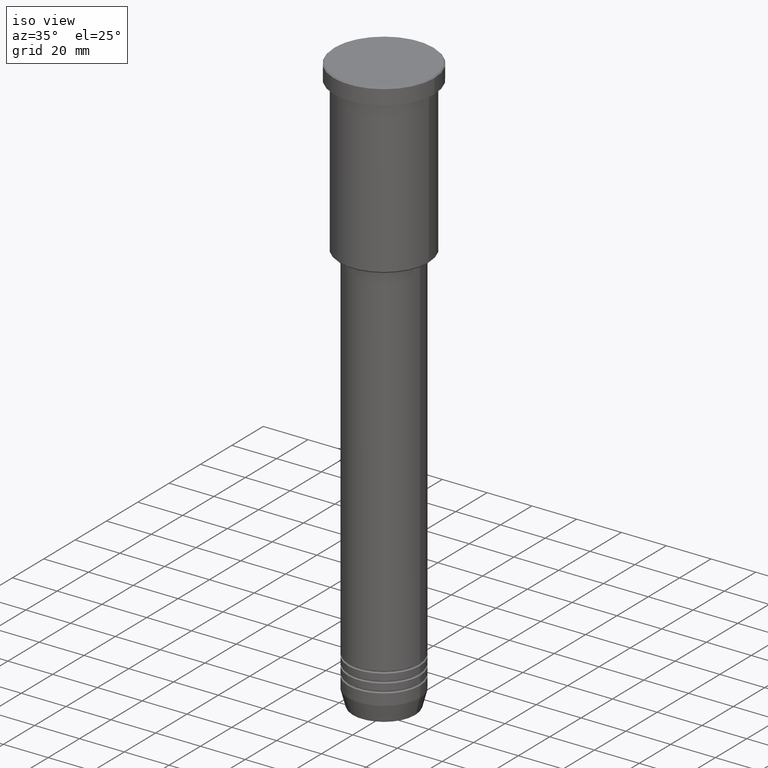
[diagram: clean part render]
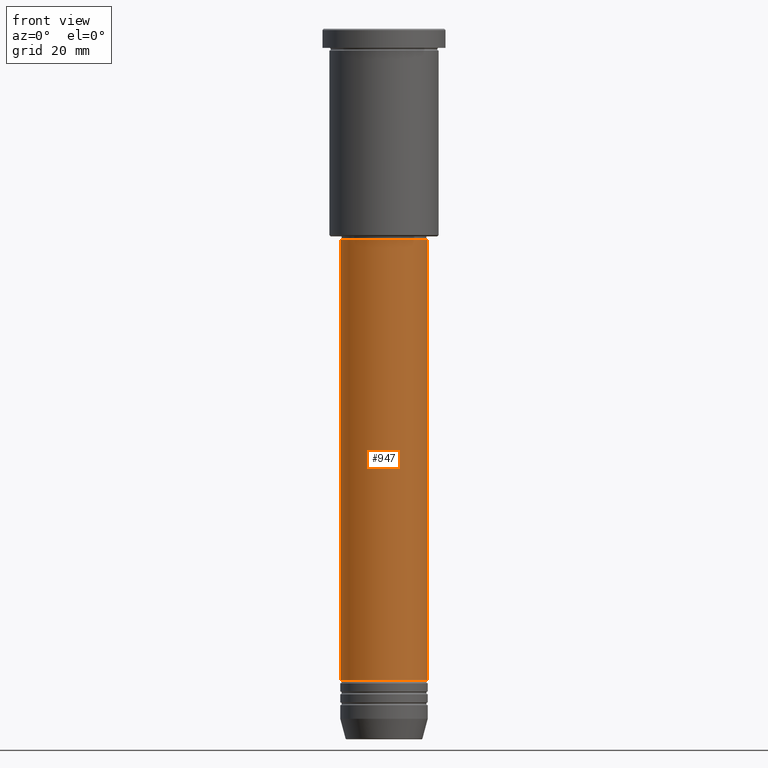
[diagram: tour spotlight — one face highlighted and labeled with its STEP entity id]
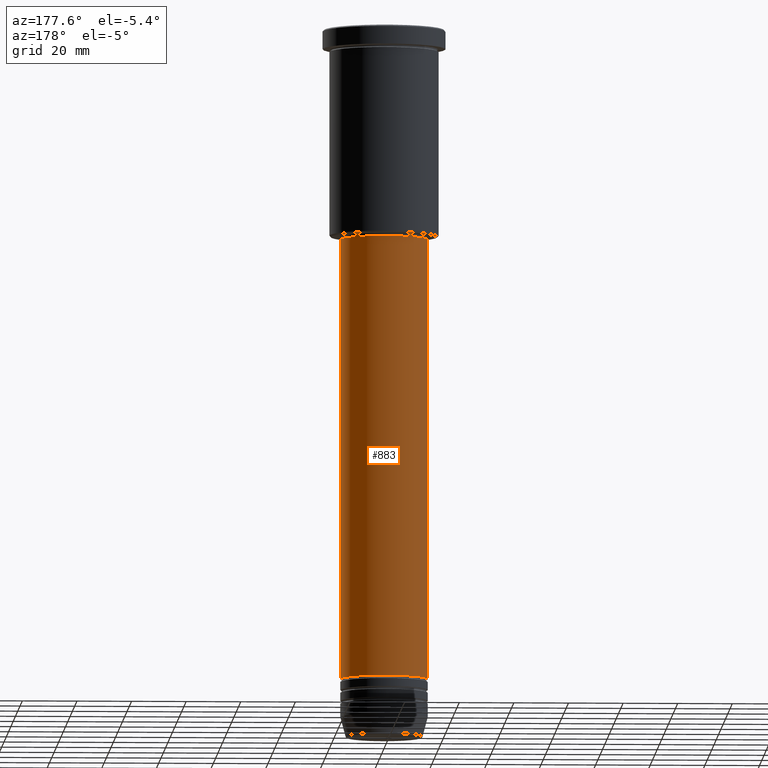
[diagram: tour spotlight — one face highlighted and labeled with its STEP entity id]
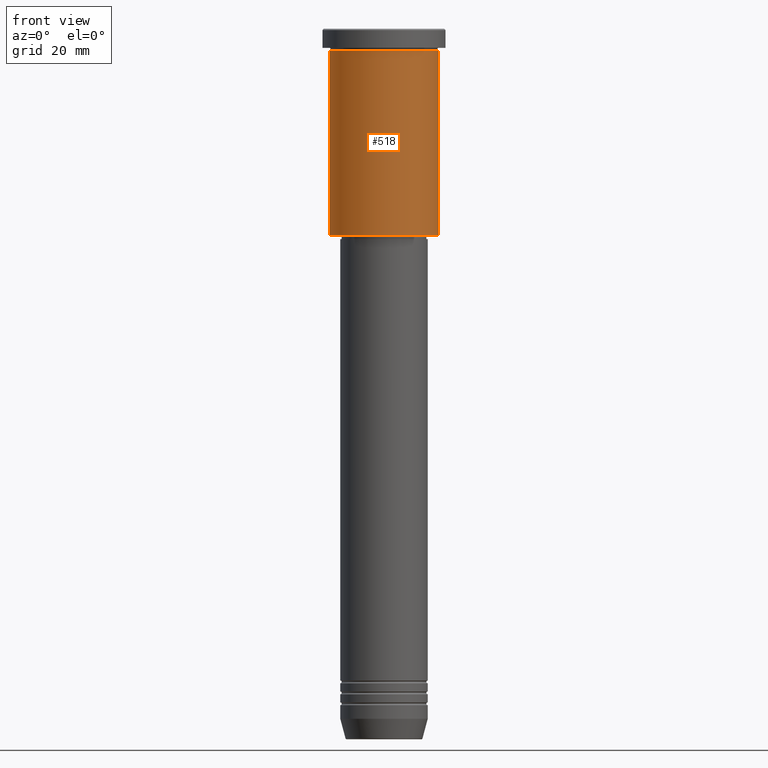
[diagram: tour spotlight — one face highlighted and labeled with its STEP entity id]
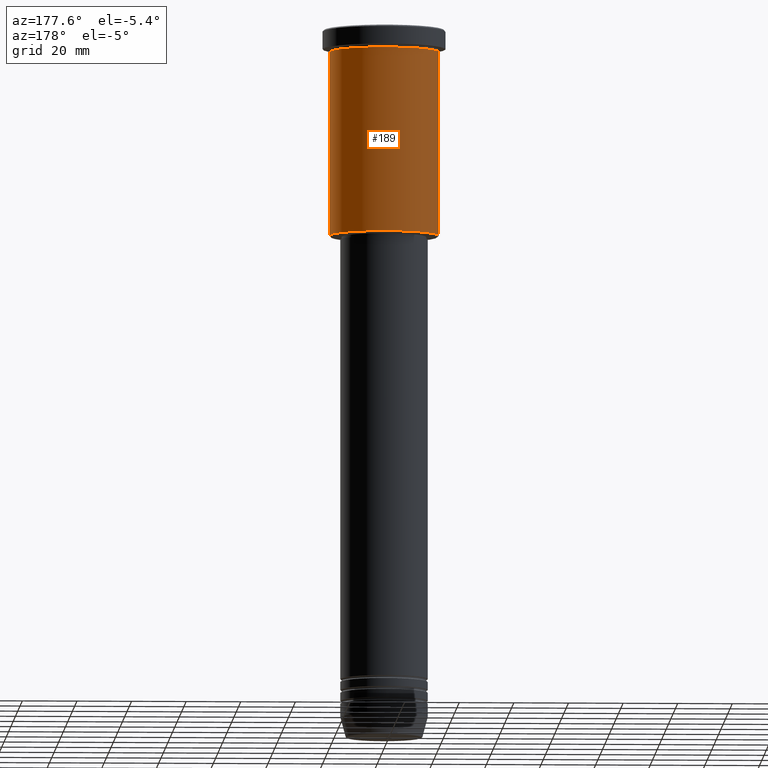
[diagram: tour spotlight — one face highlighted and labeled with its STEP entity id]
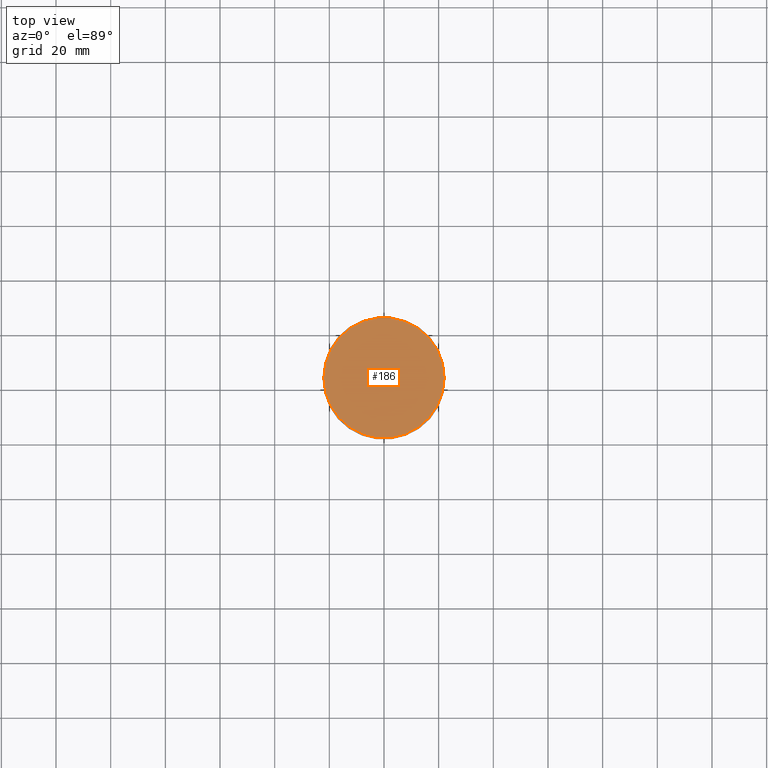
[diagram: tour spotlight — one face highlighted and labeled with its STEP entity id]
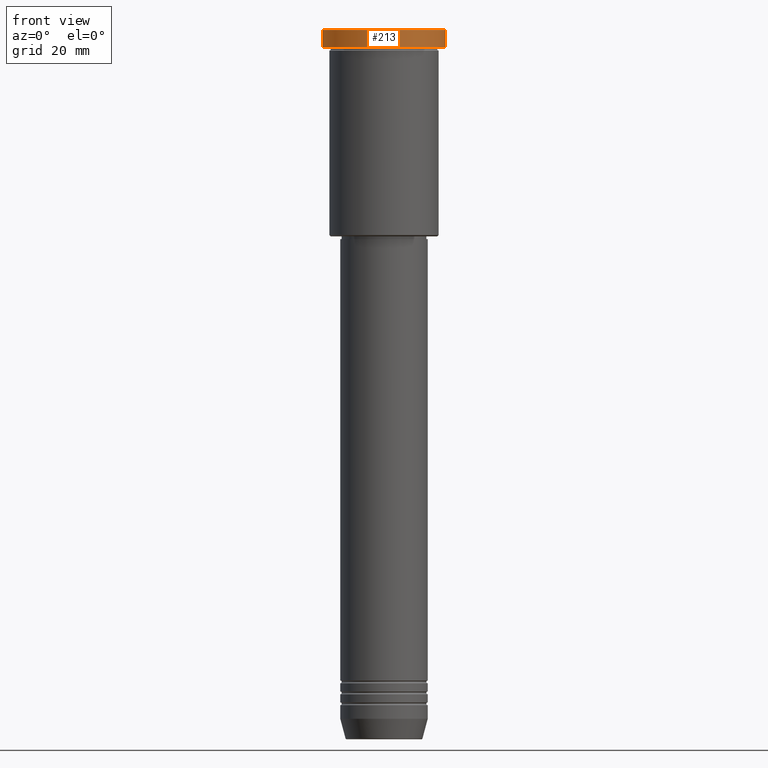
[diagram: tour spotlight — one face highlighted and labeled with its STEP entity id]
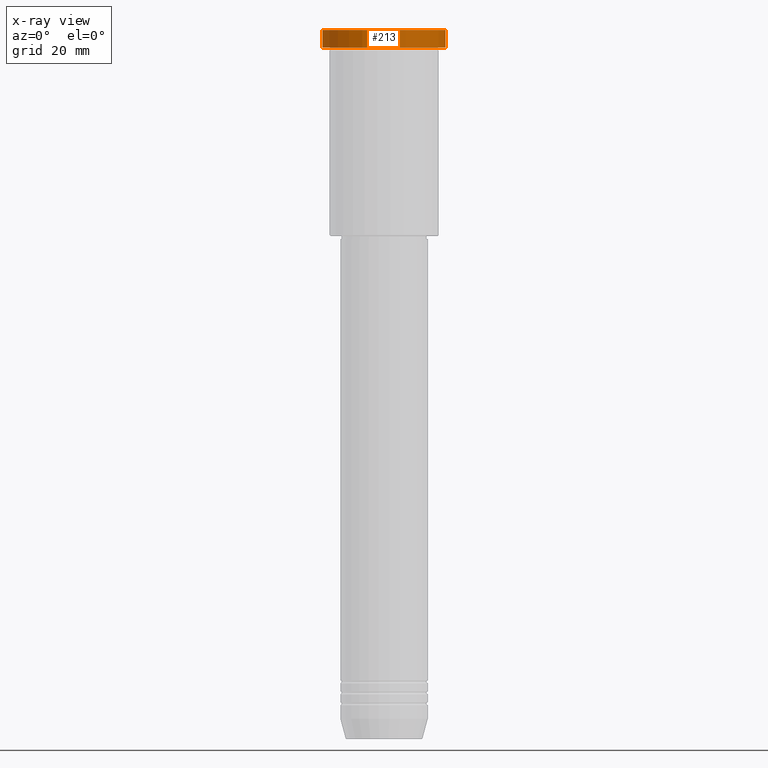
[diagram: x-ray of the same camera — body ghosted, this tour face saturated]
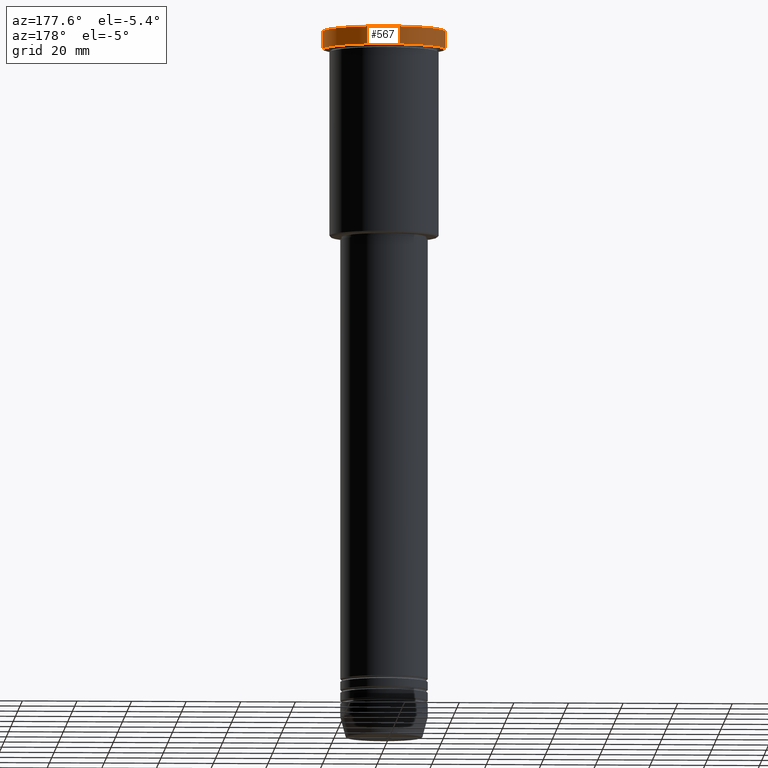
[diagram: tour spotlight — one face highlighted and labeled with its STEP entity id]
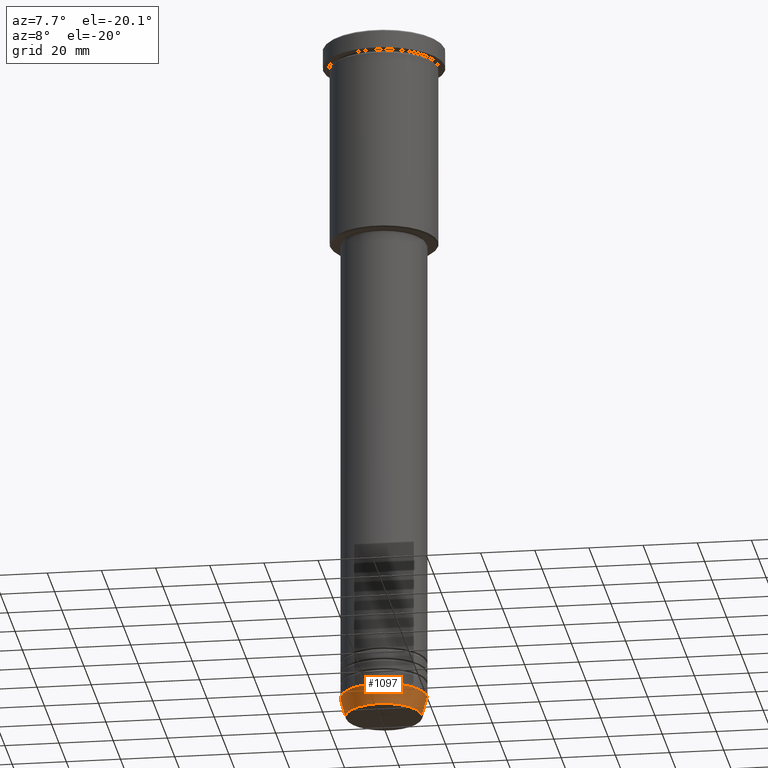
[diagram: tour spotlight — one face highlighted and labeled with its STEP entity id]
A machine part: a face-by-face anatomy tour. The part has 43 B-rep faces; the first image is the clean iso view, then the 8 largest visible faces are spotlighted one at a time (largest first), each with its STEP entity span.

Face 1 — front view, entity #947. In plain terms, the highlighted cylindrical surface (partial cylindrical patch) has radius 16 mm, axis along (-0, -0, 1).
Definition (entity closure, byte-faithful):
#93 = VERTEX_POINT ( 'NONE', #641 ) ;
#103 = EDGE_CURVE ( 'NONE', #240, #918, #1083, .T. ) ;
#108 = CYLINDRICAL_SURFACE ( 'NONE', #219, 16.00000000000000000 ) ;
#114 = DIRECTION ( 'NONE',  ( -0.000000000000000000, -0.000000000000000000, 1.000000000000000000 ) ) ;
#123 = CIRCLE ( 'NONE', #1147, 16.00000000000000000 ) ;
#219 = AXIS2_PLACEMENT_3D ( 'NONE', #563, #114, #574 ) ;
#240 = VERTEX_POINT ( 'NONE', #921 ) ;
#241 = CARTESIAN_POINT ( 'NONE',  ( 16.00000000000000000, 0.000000000000000000, 0.000000000000000000 ) ) ;
#248 = AXIS2_PLACEMENT_3D ( 'NONE', #432, #988, #333 ) ;
#275 = CARTESIAN_POINT ( 'NONE',  ( -16.00000000000000000, 1.959434878635765131E-15, 0.000000000000000000 ) ) ;
#285 = CARTESIAN_POINT ( 'NONE',  ( 16.00000000000000000, 0.000000000000000000, -238.5000000000000000 ) ) ;
#333 = DIRECTION ( 'NONE',  ( 1.000000000000000000, 0.000000000000000000, 0.000000000000000000 ) ) ;
#386 = ORIENTED_EDGE ( 'NONE', *, *, #418, .T. ) ;
#392 = EDGE_LOOP ( 'NONE', ( #1065, #386, #663, #837 ) ) ;
#418 = EDGE_CURVE ( 'NONE', #240, #955, #772, .T. ) ;
#432 = CARTESIAN_POINT ( 'NONE',  ( 0.000000000000000000, 0.000000000000000000, -238.5000000000000000 ) ) ;
#510 = DIRECTION ( 'NONE',  ( -0.000000000000000000, -0.000000000000000000, 1.000000000000000000 ) ) ;
#533 = LINE ( 'NONE', #241, #834 ) ;
#546 = DIRECTION ( 'NONE',  ( -0.000000000000000000, -0.000000000000000000, 1.000000000000000000 ) ) ;
#555 = FACE_OUTER_BOUND ( 'NONE', #392, .T. ) ;
#563 = CARTESIAN_POINT ( 'NONE',  ( 0.000000000000000000, 0.000000000000000000, 0.000000000000000000 ) ) ;
#565 = DIRECTION ( 'NONE',  ( -0.000000000000000000, -0.000000000000000000, 1.000000000000000000 ) ) ;
#574 = DIRECTION ( 'NONE',  ( 1.000000000000000000, 0.000000000000000000, 0.000000000000000000 ) ) ;
#583 = CARTESIAN_POINT ( 'NONE',  ( -16.00000000000000000, 1.959434878635765131E-15, -77.00000000000001421 ) ) ;
#641 = CARTESIAN_POINT ( 'NONE',  ( 16.00000000000000000, 0.000000000000000000, -77.00000000000001421 ) ) ;
#642 = EDGE_CURVE ( 'NONE', #918, #93, #123, .T. ) ;
#663 = ORIENTED_EDGE ( 'NONE', *, *, #1164, .T. ) ;
#772 = CIRCLE ( 'NONE', #248, 16.00000000000000000 ) ;
#834 = VECTOR ( 'NONE', #565, 1000.000000000000000 ) ;
#837 = ORIENTED_EDGE ( 'NONE', *, *, #642, .F. ) ;
#879 = CARTESIAN_POINT ( 'NONE',  ( 0.000000000000000000, 0.000000000000000000, -77.00000000000001421 ) ) ;
#918 = VERTEX_POINT ( 'NONE', #583 ) ;
#921 = CARTESIAN_POINT ( 'NONE',  ( -16.00000000000000000, 1.959434878635765131E-15, -238.5000000000000000 ) ) ;
#947 = ADVANCED_FACE ( 'NONE', ( #555 ), #108, .T. ) ;
#955 = VERTEX_POINT ( 'NONE', #285 ) ;
#988 = DIRECTION ( 'NONE',  ( -0.000000000000000000, -0.000000000000000000, 1.000000000000000000 ) ) ;
#1042 = DIRECTION ( 'NONE',  ( 1.000000000000000000, 0.000000000000000000, 0.000000000000000000 ) ) ;
#1065 = ORIENTED_EDGE ( 'NONE', *, *, #103, .F. ) ;
#1083 = LINE ( 'NONE', #275, #1145 ) ;
#1145 = VECTOR ( 'NONE', #546, 1000.000000000000000 ) ;
#1147 = AXIS2_PLACEMENT_3D ( 'NONE', #879, #510, #1042 ) ;
#1164 = EDGE_CURVE ( 'NONE', #955, #93, #533, .T. ) ;

Face 2 — auxiliary view, entity #883. In plain terms, the highlighted cylindrical surface (partial cylindrical patch) has radius 16 mm, axis along (-0, -0, 1).
Definition (entity closure, byte-faithful):
#28 = AXIS2_PLACEMENT_3D ( 'NONE', #205, #362, #650 ) ;
#93 = VERTEX_POINT ( 'NONE', #641 ) ;
#103 = EDGE_CURVE ( 'NONE', #240, #918, #1083, .T. ) ;
#124 = AXIS2_PLACEMENT_3D ( 'NONE', #391, #1119, #848 ) ;
#201 = ORIENTED_EDGE ( 'NONE', *, *, #103, .T. ) ;
#205 = CARTESIAN_POINT ( 'NONE',  ( 0.000000000000000000, 0.000000000000000000, -238.5000000000000000 ) ) ;
#209 = ORIENTED_EDGE ( 'NONE', *, *, #956, .F. ) ;
#240 = VERTEX_POINT ( 'NONE', #921 ) ;
#241 = CARTESIAN_POINT ( 'NONE',  ( 16.00000000000000000, 0.000000000000000000, 0.000000000000000000 ) ) ;
#275 = CARTESIAN_POINT ( 'NONE',  ( -16.00000000000000000, 1.959434878635765131E-15, 0.000000000000000000 ) ) ;
#285 = CARTESIAN_POINT ( 'NONE',  ( 16.00000000000000000, 0.000000000000000000, -238.5000000000000000 ) ) ;
#352 = CARTESIAN_POINT ( 'NONE',  ( 0.000000000000000000, 0.000000000000000000, 0.000000000000000000 ) ) ;
#362 = DIRECTION ( 'NONE',  ( -0.000000000000000000, -0.000000000000000000, 1.000000000000000000 ) ) ;
#391 = CARTESIAN_POINT ( 'NONE',  ( 0.000000000000000000, 0.000000000000000000, -77.00000000000001421 ) ) ;
#517 = ORIENTED_EDGE ( 'NONE', *, *, #1164, .F. ) ;
#533 = LINE ( 'NONE', #241, #834 ) ;
#546 = DIRECTION ( 'NONE',  ( -0.000000000000000000, -0.000000000000000000, 1.000000000000000000 ) ) ;
#565 = DIRECTION ( 'NONE',  ( -0.000000000000000000, -0.000000000000000000, 1.000000000000000000 ) ) ;
#583 = CARTESIAN_POINT ( 'NONE',  ( -16.00000000000000000, 1.959434878635765131E-15, -77.00000000000001421 ) ) ;
#641 = CARTESIAN_POINT ( 'NONE',  ( 16.00000000000000000, 0.000000000000000000, -77.00000000000001421 ) ) ;
#650 = DIRECTION ( 'NONE',  ( 1.000000000000000000, 0.000000000000000000, 0.000000000000000000 ) ) ;
#662 = CIRCLE ( 'NONE', #28, 16.00000000000000000 ) ;
#708 = FACE_OUTER_BOUND ( 'NONE', #803, .T. ) ;
#728 = DIRECTION ( 'NONE',  ( -0.000000000000000000, -0.000000000000000000, 1.000000000000000000 ) ) ;
#803 = EDGE_LOOP ( 'NONE', ( #846, #201, #209, #517 ) ) ;
#812 = CYLINDRICAL_SURFACE ( 'NONE', #869, 16.00000000000000000 ) ;
#834 = VECTOR ( 'NONE', #565, 1000.000000000000000 ) ;
#846 = ORIENTED_EDGE ( 'NONE', *, *, #940, .T. ) ;
#848 = DIRECTION ( 'NONE',  ( 1.000000000000000000, 0.000000000000000000, 0.000000000000000000 ) ) ;
#854 = CIRCLE ( 'NONE', #124, 16.00000000000000000 ) ;
#869 = AXIS2_PLACEMENT_3D ( 'NONE', #352, #728, #1081 ) ;
#883 = ADVANCED_FACE ( 'NONE', ( #708 ), #812, .T. ) ;
#918 = VERTEX_POINT ( 'NONE', #583 ) ;
#921 = CARTESIAN_POINT ( 'NONE',  ( -16.00000000000000000, 1.959434878635765131E-15, -238.5000000000000000 ) ) ;
#940 = EDGE_CURVE ( 'NONE', #955, #240, #662, .T. ) ;
#955 = VERTEX_POINT ( 'NONE', #285 ) ;
#956 = EDGE_CURVE ( 'NONE', #93, #918, #854, .T. ) ;
#1081 = DIRECTION ( 'NONE',  ( 1.000000000000000000, 0.000000000000000000, 0.000000000000000000 ) ) ;
#1083 = LINE ( 'NONE', #275, #1145 ) ;
#1119 = DIRECTION ( 'NONE',  ( -0.000000000000000000, -0.000000000000000000, 1.000000000000000000 ) ) ;
#1145 = VECTOR ( 'NONE', #546, 1000.000000000000000 ) ;
#1164 = EDGE_CURVE ( 'NONE', #955, #93, #533, .T. ) ;

Face 3 — front view, entity #518. In plain terms, the highlighted cylindrical surface (partial cylindrical patch) has radius 20 mm, axis along (-0, -0, 1).
Definition (entity closure, byte-faithful):
#54 = CARTESIAN_POINT ( 'NONE',  ( 0.000000000000000000, 0.000000000000000000, 0.000000000000000000 ) ) ;
#58 = VERTEX_POINT ( 'NONE', #535 ) ;
#97 = CARTESIAN_POINT ( 'NONE',  ( 20.00000000000000355, 0.000000000000000000, 0.000000000000000000 ) ) ;
#125 = DIRECTION ( 'NONE',  ( -0.000000000000000000, -0.000000000000000000, 1.000000000000000000 ) ) ;
#151 = DIRECTION ( 'NONE',  ( 1.000000000000000000, 0.000000000000000000, 0.000000000000000000 ) ) ;
#157 = CARTESIAN_POINT ( 'NONE',  ( -20.00000000000000355, 2.449293598294706907E-15, 0.000000000000000000 ) ) ;
#236 = ORIENTED_EDGE ( 'NONE', *, *, #712, .F. ) ;
#237 = DIRECTION ( 'NONE',  ( -0.000000000000000000, -0.000000000000000000, 1.000000000000000000 ) ) ;
#273 = EDGE_LOOP ( 'NONE', ( #236, #766, #350, #726 ) ) ;
#308 = CIRCLE ( 'NONE', #1146, 20.00000000000000000 ) ;
#342 = DIRECTION ( 'NONE',  ( -0.000000000000000000, -0.000000000000000000, 1.000000000000000000 ) ) ;
#350 = ORIENTED_EDGE ( 'NONE', *, *, #910, .T. ) ;
#401 = VECTOR ( 'NONE', #629, 1000.000000000000000 ) ;
#433 = LINE ( 'NONE', #157, #401 ) ;
#466 = DIRECTION ( 'NONE',  ( -0.000000000000000000, -0.000000000000000000, 1.000000000000000000 ) ) ;
#514 = FACE_OUTER_BOUND ( 'NONE', #273, .T. ) ;
#515 = EDGE_CURVE ( 'NONE', #58, #1107, #308, .T. ) ;
#518 = ADVANCED_FACE ( 'NONE', ( #514 ), #878, .T. ) ;
#522 = VERTEX_POINT ( 'NONE', #604 ) ;
#535 = CARTESIAN_POINT ( 'NONE',  ( -20.00000000000000000, 2.449293598294706513E-15, -7.999999999999994671 ) ) ;
#604 = CARTESIAN_POINT ( 'NONE',  ( -20.00000000000000355, 2.449293598294706907E-15, -75.50000000000001421 ) ) ;
#618 = CIRCLE ( 'NONE', #983, 20.00000000000000355 ) ;
#629 = DIRECTION ( 'NONE',  ( -0.000000000000000000, -0.000000000000000000, 1.000000000000000000 ) ) ;
#707 = CARTESIAN_POINT ( 'NONE',  ( 20.00000000000000355, 0.000000000000000000, -75.50000000000001421 ) ) ;
#712 = EDGE_CURVE ( 'NONE', #522, #58, #433, .T. ) ;
#717 = AXIS2_PLACEMENT_3D ( 'NONE', #54, #237, #1144 ) ;
#726 = ORIENTED_EDGE ( 'NONE', *, *, #515, .F. ) ;
#762 = CARTESIAN_POINT ( 'NONE',  ( 0.000000000000000000, 0.000000000000000000, -75.50000000000001421 ) ) ;
#766 = ORIENTED_EDGE ( 'NONE', *, *, #969, .T. ) ;
#878 = CYLINDRICAL_SURFACE ( 'NONE', #717, 20.00000000000000355 ) ;
#889 = VECTOR ( 'NONE', #466, 1000.000000000000000 ) ;
#910 = EDGE_CURVE ( 'NONE', #1015, #1107, #922, .T. ) ;
#922 = LINE ( 'NONE', #97, #889 ) ;
#923 = DIRECTION ( 'NONE',  ( -1.000000000000000000, 0.000000000000000000, 0.000000000000000000 ) ) ;
#969 = EDGE_CURVE ( 'NONE', #522, #1015, #618, .T. ) ;
#982 = CARTESIAN_POINT ( 'NONE',  ( 0.000000000000000000, 0.000000000000000000, -7.999999999999994671 ) ) ;
#983 = AXIS2_PLACEMENT_3D ( 'NONE', #762, #125, #923 ) ;
#993 = CARTESIAN_POINT ( 'NONE',  ( 20.00000000000000000, 0.000000000000000000, -7.999999999999994671 ) ) ;
#1015 = VERTEX_POINT ( 'NONE', #707 ) ;
#1107 = VERTEX_POINT ( 'NONE', #993 ) ;
#1144 = DIRECTION ( 'NONE',  ( 1.000000000000000000, 0.000000000000000000, 0.000000000000000000 ) ) ;
#1146 = AXIS2_PLACEMENT_3D ( 'NONE', #982, #342, #151 ) ;

Face 4 — auxiliary view, entity #189. In plain terms, the highlighted cylindrical surface (partial cylindrical patch) has radius 20 mm, axis along (-0, -0, 1).
Definition (entity closure, byte-faithful):
#58 = VERTEX_POINT ( 'NONE', #535 ) ;
#97 = CARTESIAN_POINT ( 'NONE',  ( 20.00000000000000355, 0.000000000000000000, 0.000000000000000000 ) ) ;
#120 = AXIS2_PLACEMENT_3D ( 'NONE', #1176, #1011, #358 ) ;
#157 = CARTESIAN_POINT ( 'NONE',  ( -20.00000000000000355, 2.449293598294706907E-15, 0.000000000000000000 ) ) ;
#183 = AXIS2_PLACEMENT_3D ( 'NONE', #850, #733, #1086 ) ;
#189 = ADVANCED_FACE ( 'NONE', ( #377 ), #498, .T. ) ;
#249 = EDGE_CURVE ( 'NONE', #1107, #58, #998, .T. ) ;
#269 = ORIENTED_EDGE ( 'NONE', *, *, #712, .T. ) ;
#287 = DIRECTION ( 'NONE',  ( -0.000000000000000000, -0.000000000000000000, 1.000000000000000000 ) ) ;
#358 = DIRECTION ( 'NONE',  ( 1.000000000000000000, 0.000000000000000000, 0.000000000000000000 ) ) ;
#377 = FACE_OUTER_BOUND ( 'NONE', #610, .T. ) ;
#401 = VECTOR ( 'NONE', #629, 1000.000000000000000 ) ;
#433 = LINE ( 'NONE', #157, #401 ) ;
#466 = DIRECTION ( 'NONE',  ( -0.000000000000000000, -0.000000000000000000, 1.000000000000000000 ) ) ;
#498 = CYLINDRICAL_SURFACE ( 'NONE', #1108, 20.00000000000000355 ) ;
#522 = VERTEX_POINT ( 'NONE', #604 ) ;
#535 = CARTESIAN_POINT ( 'NONE',  ( -20.00000000000000000, 2.449293598294706513E-15, -7.999999999999994671 ) ) ;
#547 = ORIENTED_EDGE ( 'NONE', *, *, #910, .F. ) ;
#575 = DIRECTION ( 'NONE',  ( 1.000000000000000000, 0.000000000000000000, 0.000000000000000000 ) ) ;
#585 = CARTESIAN_POINT ( 'NONE',  ( 0.000000000000000000, 0.000000000000000000, 0.000000000000000000 ) ) ;
#604 = CARTESIAN_POINT ( 'NONE',  ( -20.00000000000000355, 2.449293598294706907E-15, -75.50000000000001421 ) ) ;
#610 = EDGE_LOOP ( 'NONE', ( #1022, #269, #635, #547 ) ) ;
#629 = DIRECTION ( 'NONE',  ( -0.000000000000000000, -0.000000000000000000, 1.000000000000000000 ) ) ;
#635 = ORIENTED_EDGE ( 'NONE', *, *, #249, .F. ) ;
#707 = CARTESIAN_POINT ( 'NONE',  ( 20.00000000000000355, 0.000000000000000000, -75.50000000000001421 ) ) ;
#712 = EDGE_CURVE ( 'NONE', #522, #58, #433, .T. ) ;
#733 = DIRECTION ( 'NONE',  ( -0.000000000000000000, -0.000000000000000000, 1.000000000000000000 ) ) ;
#850 = CARTESIAN_POINT ( 'NONE',  ( 0.000000000000000000, 0.000000000000000000, -75.50000000000001421 ) ) ;
#851 = EDGE_CURVE ( 'NONE', #1015, #522, #979, .T. ) ;
#889 = VECTOR ( 'NONE', #466, 1000.000000000000000 ) ;
#910 = EDGE_CURVE ( 'NONE', #1015, #1107, #922, .T. ) ;
#922 = LINE ( 'NONE', #97, #889 ) ;
#979 = CIRCLE ( 'NONE', #183, 20.00000000000000355 ) ;
#993 = CARTESIAN_POINT ( 'NONE',  ( 20.00000000000000000, 0.000000000000000000, -7.999999999999994671 ) ) ;
#998 = CIRCLE ( 'NONE', #120, 20.00000000000000000 ) ;
#1011 = DIRECTION ( 'NONE',  ( -0.000000000000000000, -0.000000000000000000, 1.000000000000000000 ) ) ;
#1015 = VERTEX_POINT ( 'NONE', #707 ) ;
#1022 = ORIENTED_EDGE ( 'NONE', *, *, #851, .T. ) ;
#1086 = DIRECTION ( 'NONE',  ( -1.000000000000000000, 0.000000000000000000, 0.000000000000000000 ) ) ;
#1107 = VERTEX_POINT ( 'NONE', #993 ) ;
#1108 = AXIS2_PLACEMENT_3D ( 'NONE', #585, #287, #575 ) ;
#1176 = CARTESIAN_POINT ( 'NONE',  ( 0.000000000000000000, 0.000000000000000000, -7.999999999999994671 ) ) ;

Face 5 — top view, entity #186. In plain terms, the highlighted planar face has unit normal (0, -0, 1).
Definition (entity closure, byte-faithful):
#2 = CARTESIAN_POINT ( 'NONE',  ( 0.000000000000000000, 0.000000000000000000, 0.000000000000000000 ) ) ;
#33 = CARTESIAN_POINT ( 'NONE',  ( 0.000000000000000000, 0.000000000000000000, 0.000000000000000000 ) ) ;
#72 = VERTEX_POINT ( 'NONE', #725 ) ;
#106 = CARTESIAN_POINT ( 'NONE',  ( -21.99999999999990763, 0.000000000000000000, 0.000000000000000000 ) ) ;
#140 = AXIS2_PLACEMENT_3D ( 'NONE', #372, #748, #1035 ) ;
#186 = ADVANCED_FACE ( 'NONE', ( #836 ), #557, .T. ) ;
#239 = EDGE_LOOP ( 'NONE', ( #896, #399 ) ) ;
#372 = CARTESIAN_POINT ( 'NONE',  ( 0.000000000000000000, 0.000000000000000000, 0.000000000000000000 ) ) ;
#394 = DIRECTION ( 'NONE',  ( -0.000000000000000000, -0.000000000000000000, 1.000000000000000000 ) ) ;
#399 = ORIENTED_EDGE ( 'NONE', *, *, #985, .T. ) ;
#550 = DIRECTION ( 'NONE',  ( -0.000000000000000000, -0.000000000000000000, 1.000000000000000000 ) ) ;
#557 = PLANE ( 'NONE',  #140 ) ;
#559 = CIRCLE ( 'NONE', #981, 21.99999999999990763 ) ;
#725 = CARTESIAN_POINT ( 'NONE',  ( 21.99999999999990763, 2.724839128102855074E-15, 0.000000000000000000 ) ) ;
#748 = DIRECTION ( 'NONE',  ( 0.000000000000000000, -0.000000000000000000, 1.000000000000000000 ) ) ;
#775 = CIRCLE ( 'NONE', #1004, 21.99999999999990763 ) ;
#833 = DIRECTION ( 'NONE',  ( 1.000000000000000000, 0.000000000000000000, 0.000000000000000000 ) ) ;
#836 = FACE_OUTER_BOUND ( 'NONE', #239, .T. ) ;
#896 = ORIENTED_EDGE ( 'NONE', *, *, #1012, .T. ) ;
#981 = AXIS2_PLACEMENT_3D ( 'NONE', #33, #394, #1152 ) ;
#985 = EDGE_CURVE ( 'NONE', #72, #1017, #775, .T. ) ;
#1004 = AXIS2_PLACEMENT_3D ( 'NONE', #2, #550, #833 ) ;
#1012 = EDGE_CURVE ( 'NONE', #1017, #72, #559, .T. ) ;
#1017 = VERTEX_POINT ( 'NONE', #106 ) ;
#1035 = DIRECTION ( 'NONE',  ( 1.000000000000000000, 0.000000000000000000, 0.000000000000000000 ) ) ;
#1152 = DIRECTION ( 'NONE',  ( 1.000000000000000000, 0.000000000000000000, 0.000000000000000000 ) ) ;

Face 6 — front view, entity #213. An x-ray twin of the same camera follows (body ghosted, this face saturated) — the face is partly hidden behind the body. In plain terms, the highlighted cylindrical surface (partial cylindrical patch) has radius 22.5 mm, axis along (-0, -0, 1).
Definition (entity closure, byte-faithful):
#8 = DIRECTION ( 'NONE',  ( 1.000000000000000000, 0.000000000000000000, 0.000000000000000000 ) ) ;
#119 = DIRECTION ( 'NONE',  ( 1.000000000000000000, 0.000000000000000000, 0.000000000000000000 ) ) ;
#128 = CARTESIAN_POINT ( 'NONE',  ( 0.000000000000000000, 0.000000000000000000, -0.5000000000001045830 ) ) ;
#148 = ORIENTED_EDGE ( 'NONE', *, *, #925, .T. ) ;
#153 = EDGE_CURVE ( 'NONE', #977, #648, #288, .T. ) ;
#177 = LINE ( 'NONE', #1016, #1148 ) ;
#213 = ADVANCED_FACE ( 'NONE', ( #295 ), #677, .T. ) ;
#221 = CARTESIAN_POINT ( 'NONE',  ( 22.50000000000000000, 0.000000000000000000, -0.5000000000001045830 ) ) ;
#232 = AXIS2_PLACEMENT_3D ( 'NONE', #1179, #359, #917 ) ;
#288 = CIRCLE ( 'NONE', #232, 22.50000000000000000 ) ;
#289 = DIRECTION ( 'NONE',  ( 0.000000000000000000, 0.000000000000000000, -1.000000000000000000 ) ) ;
#295 = FACE_OUTER_BOUND ( 'NONE', #750, .T. ) ;
#299 = CARTESIAN_POINT ( 'NONE',  ( -22.50000000000000000, 2.755455298081544778E-15, -6.999999999999995559 ) ) ;
#346 = CIRCLE ( 'NONE', #506, 22.50000000000000000 ) ;
#359 = DIRECTION ( 'NONE',  ( -0.000000000000000000, -0.000000000000000000, 1.000000000000000000 ) ) ;
#375 = DIRECTION ( 'NONE',  ( -0.000000000000000000, -0.000000000000000000, 1.000000000000000000 ) ) ;
#461 = DIRECTION ( 'NONE',  ( -0.000000000000000000, -0.000000000000000000, 1.000000000000000000 ) ) ;
#478 = CARTESIAN_POINT ( 'NONE',  ( 0.000000000000000000, 0.000000000000000000, 0.000000000000000000 ) ) ;
#482 = ORIENTED_EDGE ( 'NONE', *, *, #153, .T. ) ;
#506 = AXIS2_PLACEMENT_3D ( 'NONE', #128, #289, #8 ) ;
#607 = VERTEX_POINT ( 'NONE', #221 ) ;
#648 = VERTEX_POINT ( 'NONE', #970 ) ;
#667 = DIRECTION ( 'NONE',  ( -0.000000000000000000, -0.000000000000000000, 1.000000000000000000 ) ) ;
#677 = CYLINDRICAL_SURFACE ( 'NONE', #926, 22.50000000000000000 ) ;
#750 = EDGE_LOOP ( 'NONE', ( #888, #482, #823, #148 ) ) ;
#763 = LINE ( 'NONE', #1000, #1073 ) ;
#786 = CARTESIAN_POINT ( 'NONE',  ( -22.50000000000000000, 2.755455298081544778E-15, -0.5000000000001045830 ) ) ;
#823 = ORIENTED_EDGE ( 'NONE', *, *, #933, .T. ) ;
#888 = ORIENTED_EDGE ( 'NONE', *, *, #1180, .F. ) ;
#917 = DIRECTION ( 'NONE',  ( 1.000000000000000000, 0.000000000000000000, 0.000000000000000000 ) ) ;
#925 = EDGE_CURVE ( 'NONE', #607, #1078, #346, .T. ) ;
#926 = AXIS2_PLACEMENT_3D ( 'NONE', #478, #667, #119 ) ;
#933 = EDGE_CURVE ( 'NONE', #648, #607, #177, .T. ) ;
#970 = CARTESIAN_POINT ( 'NONE',  ( 22.50000000000000000, 0.000000000000000000, -6.999999999999995559 ) ) ;
#977 = VERTEX_POINT ( 'NONE', #299 ) ;
#1000 = CARTESIAN_POINT ( 'NONE',  ( -22.50000000000000000, 2.755455298081544778E-15, 0.000000000000000000 ) ) ;
#1016 = CARTESIAN_POINT ( 'NONE',  ( 22.50000000000000000, 0.000000000000000000, 0.000000000000000000 ) ) ;
#1073 = VECTOR ( 'NONE', #461, 1000.000000000000000 ) ;
#1078 = VERTEX_POINT ( 'NONE', #786 ) ;
#1148 = VECTOR ( 'NONE', #375, 1000.000000000000000 ) ;
#1179 = CARTESIAN_POINT ( 'NONE',  ( 0.000000000000000000, 0.000000000000000000, -6.999999999999995559 ) ) ;
#1180 = EDGE_CURVE ( 'NONE', #977, #1078, #763, .T. ) ;

Face 7 — auxiliary view, entity #567. In plain terms, the highlighted cylindrical surface (partial cylindrical patch) has radius 22.5 mm, axis along (-0, -0, 1).
Definition (entity closure, byte-faithful):
#85 = CARTESIAN_POINT ( 'NONE',  ( 0.000000000000000000, 0.000000000000000000, -0.5000000000001045830 ) ) ;
#113 = DIRECTION ( 'NONE',  ( 1.000000000000000000, 0.000000000000000000, 0.000000000000000000 ) ) ;
#116 = EDGE_CURVE ( 'NONE', #648, #977, #886, .T. ) ;
#160 = AXIS2_PLACEMENT_3D ( 'NONE', #990, #743, #462 ) ;
#177 = LINE ( 'NONE', #1016, #1148 ) ;
#221 = CARTESIAN_POINT ( 'NONE',  ( 22.50000000000000000, 0.000000000000000000, -0.5000000000001045830 ) ) ;
#262 = DIRECTION ( 'NONE',  ( -0.000000000000000000, -0.000000000000000000, 1.000000000000000000 ) ) ;
#299 = CARTESIAN_POINT ( 'NONE',  ( -22.50000000000000000, 2.755455298081544778E-15, -6.999999999999995559 ) ) ;
#375 = DIRECTION ( 'NONE',  ( -0.000000000000000000, -0.000000000000000000, 1.000000000000000000 ) ) ;
#425 = CIRCLE ( 'NONE', #1092, 22.50000000000000000 ) ;
#451 = CYLINDRICAL_SURFACE ( 'NONE', #948, 22.50000000000000000 ) ;
#461 = DIRECTION ( 'NONE',  ( -0.000000000000000000, -0.000000000000000000, 1.000000000000000000 ) ) ;
#462 = DIRECTION ( 'NONE',  ( 1.000000000000000000, 0.000000000000000000, 0.000000000000000000 ) ) ;
#502 = ORIENTED_EDGE ( 'NONE', *, *, #902, .T. ) ;
#516 = ORIENTED_EDGE ( 'NONE', *, *, #1180, .T. ) ;
#567 = ADVANCED_FACE ( 'NONE', ( #908 ), #451, .T. ) ;
#607 = VERTEX_POINT ( 'NONE', #221 ) ;
#612 = EDGE_LOOP ( 'NONE', ( #1060, #516, #502, #1085 ) ) ;
#648 = VERTEX_POINT ( 'NONE', #970 ) ;
#743 = DIRECTION ( 'NONE',  ( -0.000000000000000000, -0.000000000000000000, 1.000000000000000000 ) ) ;
#763 = LINE ( 'NONE', #1000, #1073 ) ;
#786 = CARTESIAN_POINT ( 'NONE',  ( -22.50000000000000000, 2.755455298081544778E-15, -0.5000000000001045830 ) ) ;
#886 = CIRCLE ( 'NONE', #160, 22.50000000000000000 ) ;
#902 = EDGE_CURVE ( 'NONE', #1078, #607, #425, .T. ) ;
#908 = FACE_OUTER_BOUND ( 'NONE', #612, .T. ) ;
#916 = DIRECTION ( 'NONE',  ( 0.000000000000000000, 0.000000000000000000, -1.000000000000000000 ) ) ;
#933 = EDGE_CURVE ( 'NONE', #648, #607, #177, .T. ) ;
#948 = AXIS2_PLACEMENT_3D ( 'NONE', #1084, #262, #1181 ) ;
#970 = CARTESIAN_POINT ( 'NONE',  ( 22.50000000000000000, 0.000000000000000000, -6.999999999999995559 ) ) ;
#977 = VERTEX_POINT ( 'NONE', #299 ) ;
#990 = CARTESIAN_POINT ( 'NONE',  ( 0.000000000000000000, 0.000000000000000000, -6.999999999999995559 ) ) ;
#1000 = CARTESIAN_POINT ( 'NONE',  ( -22.50000000000000000, 2.755455298081544778E-15, 0.000000000000000000 ) ) ;
#1016 = CARTESIAN_POINT ( 'NONE',  ( 22.50000000000000000, 0.000000000000000000, 0.000000000000000000 ) ) ;
#1060 = ORIENTED_EDGE ( 'NONE', *, *, #116, .T. ) ;
#1073 = VECTOR ( 'NONE', #461, 1000.000000000000000 ) ;
#1078 = VERTEX_POINT ( 'NONE', #786 ) ;
#1084 = CARTESIAN_POINT ( 'NONE',  ( 0.000000000000000000, 0.000000000000000000, 0.000000000000000000 ) ) ;
#1085 = ORIENTED_EDGE ( 'NONE', *, *, #933, .F. ) ;
#1092 = AXIS2_PLACEMENT_3D ( 'NONE', #85, #916, #113 ) ;
#1148 = VECTOR ( 'NONE', #375, 1000.000000000000000 ) ;
#1180 = EDGE_CURVE ( 'NONE', #977, #1078, #763, .T. ) ;
#1181 = DIRECTION ( 'NONE',  ( 1.000000000000000000, 0.000000000000000000, 0.000000000000000000 ) ) ;

Face 8 — auxiliary view, entity #1097. In plain terms, the highlighted conical surface has half-angle 15 deg.
Definition (entity closure, byte-faithful):
#14 = VERTEX_POINT ( 'NONE', #158 ) ;
#44 = DIRECTION ( 'NONE',  ( -0.000000000000000000, -0.000000000000000000, 1.000000000000000000 ) ) ;
#49 = CARTESIAN_POINT ( 'NONE',  ( 16.00000000000000000, 0.000000000000000000, -252.5000000000000000 ) ) ;
#53 = CARTESIAN_POINT ( 'NONE',  ( 0.000000000000000000, 0.000000000000000000, -252.5000000000000000 ) ) ;
#64 = CARTESIAN_POINT ( 'NONE',  ( 16.00000000000000000, 0.000000000000000000, -252.5000000000000000 ) ) ;
#90 = VERTEX_POINT ( 'NONE', #625 ) ;
#134 = EDGE_LOOP ( 'NONE', ( #785, #373, #992, #682 ) ) ;
#144 = AXIS2_PLACEMENT_3D ( 'NONE', #624, #898, #259 ) ;
#158 = CARTESIAN_POINT ( 'NONE',  ( -16.00000000000000000, 1.959434878635765131E-15, -252.5000000000000000 ) ) ;
#182 = VECTOR ( 'NONE', #536, 1000.000000000000000 ) ;
#246 = LINE ( 'NONE', #49, #1070 ) ;
#250 = CIRCLE ( 'NONE', #144, 14.08968047592161632 ) ;
#259 = DIRECTION ( 'NONE',  ( 1.000000000000000000, 0.000000000000000000, 0.000000000000000000 ) ) ;
#373 = ORIENTED_EDGE ( 'NONE', *, *, #735, .T. ) ;
#374 = EDGE_CURVE ( 'NONE', #14, #715, #808, .T. ) ;
#407 = VERTEX_POINT ( 'NONE', #437 ) ;
#415 = DIRECTION ( 'NONE',  ( 1.000000000000000000, 0.000000000000000000, 0.000000000000000000 ) ) ;
#423 = DIRECTION ( 'NONE',  ( 0.2588190451025213501, 0.000000000000000000, 0.9659258262890680902 ) ) ;
#430 = EDGE_CURVE ( 'NONE', #407, #715, #246, .T. ) ;
#437 = CARTESIAN_POINT ( 'NONE',  ( 14.08968047592161632, 0.000000000000000000, -259.6294095225512706 ) ) ;
#507 = DIRECTION ( 'NONE',  ( -0.000000000000000000, -0.000000000000000000, 1.000000000000000000 ) ) ;
#536 = DIRECTION ( 'NONE',  ( -0.2588190451025213501, 3.169619151431772337E-17, 0.9659258262890680902 ) ) ;
#560 = EDGE_CURVE ( 'NONE', #90, #14, #1008, .T. ) ;
#573 = FACE_OUTER_BOUND ( 'NONE', #134, .T. ) ;
#624 = CARTESIAN_POINT ( 'NONE',  ( 0.000000000000000000, 0.000000000000000000, -259.6294095225512706 ) ) ;
#625 = CARTESIAN_POINT ( 'NONE',  ( -14.08968047592161632, 1.842461544110200874E-15, -259.6294095225512706 ) ) ;
#627 = CARTESIAN_POINT ( 'NONE',  ( -16.00000000000000000, 1.959434878635765131E-15, -252.5000000000000000 ) ) ;
#682 = ORIENTED_EDGE ( 'NONE', *, *, #374, .F. ) ;
#683 = AXIS2_PLACEMENT_3D ( 'NONE', #53, #507, #415 ) ;
#715 = VERTEX_POINT ( 'NONE', #64 ) ;
#735 = EDGE_CURVE ( 'NONE', #90, #407, #250, .T. ) ;
#778 = DIRECTION ( 'NONE',  ( 1.000000000000000000, 0.000000000000000000, 0.000000000000000000 ) ) ;
#785 = ORIENTED_EDGE ( 'NONE', *, *, #560, .F. ) ;
#808 = CIRCLE ( 'NONE', #1129, 16.00000000000000000 ) ;
#898 = DIRECTION ( 'NONE',  ( -0.000000000000000000, -0.000000000000000000, 1.000000000000000000 ) ) ;
#930 = CONICAL_SURFACE ( 'NONE', #683, 16.00000000000000000, 0.2617993877991500740 ) ;
#957 = CARTESIAN_POINT ( 'NONE',  ( 0.000000000000000000, 0.000000000000000000, -252.5000000000000000 ) ) ;
#992 = ORIENTED_EDGE ( 'NONE', *, *, #430, .T. ) ;
#1008 = LINE ( 'NONE', #627, #182 ) ;
#1070 = VECTOR ( 'NONE', #423, 1000.000000000000000 ) ;
#1097 = ADVANCED_FACE ( 'NONE', ( #573 ), #930, .T. ) ;
#1129 = AXIS2_PLACEMENT_3D ( 'NONE', #957, #44, #778 ) ;